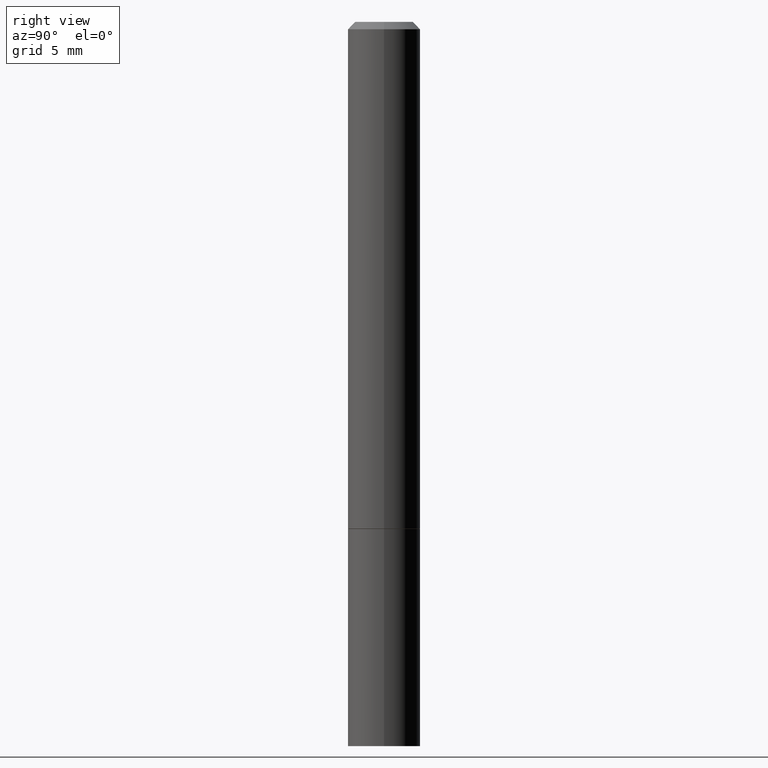
[diagram: clean part render]
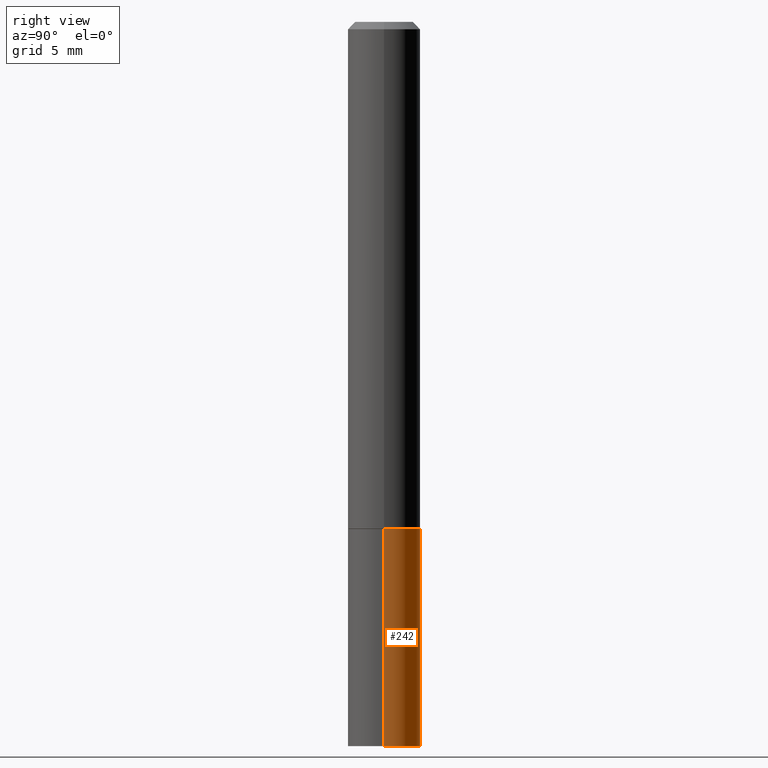
[diagram: same view with one face highlighted and labeled with its STEP entity id]
A machine part, right view. The second image highlights one B-rep face of the part: STEP entity #242.
In plain terms, the highlighted cylindrical surface (edge-blend (fillet) strip) has radius 2.5006 mm, axis along (-0, 0, 1).
Its self-contained STEP definition (entity closure, byte-faithful):
#3 = ORIENTED_EDGE ( 'NONE', *, *, #264, .F. ) ;
#10 = CARTESIAN_POINT ( 'NONE',  ( -0.09844999999999999585, -5.142417252796532568E-15, -1.968500000000000139 ) ) ;
#15 = DIRECTION ( 'NONE',  ( -2.445468806185136597E-29, 3.491481338843145583E-15, 1.000000000000000000 ) ) ;
#18 = EDGE_CURVE ( 'NONE', #353, #139, #183, .T. ) ;
#46 = DIRECTION ( 'NONE',  ( 1.000000000000000000, -6.982962677686265922E-15, 0.000000000000000000 ) ) ;
#65 = VECTOR ( 'NONE', #131, 39.37007874015748143 ) ;
#74 = EDGE_CURVE ( 'NONE', #160, #223, #116, .T. ) ;
#89 = AXIS2_PLACEMENT_3D ( 'NONE', #169, #142, #346 ) ;
#113 = DIRECTION ( 'NONE',  ( -2.445468806185136877E-29, 3.491481338843145188E-15, 1.000000000000000000 ) ) ;
#115 = CARTESIAN_POINT ( 'NONE',  ( 0.09844999999999999585, -7.560453691130944267E-15, -1.968500000000000139 ) ) ;
#116 = CIRCLE ( 'NONE', #89, 0.09844999999999999585 ) ;
#128 = CARTESIAN_POINT ( 'NONE',  ( 0.000000000000000000, 0.000000000000000000, 0.000000000000000000 ) ) ;
#131 = DIRECTION ( 'NONE',  ( -2.445468806185136877E-29, 3.491481338843145188E-15, 1.000000000000000000 ) ) ;
#137 = EDGE_LOOP ( 'NONE', ( #272, #239, #190, #3 ) ) ;
#139 = VERTEX_POINT ( 'NONE', #172 ) ;
#142 = DIRECTION ( 'NONE',  ( -2.445468806185136597E-29, 3.491481338843145583E-15, 1.000000000000000000 ) ) ;
#145 = LINE ( 'NONE', #288, #359 ) ;
#150 = EDGE_CURVE ( 'NONE', #223, #139, #145, .T. ) ;
#158 = CARTESIAN_POINT ( 'NONE',  ( 0.09844999999999999585, -6.874726756182129545E-16, 4.800596035771099214E-30 ) ) ;
#160 = VERTEX_POINT ( 'NONE', #115 ) ;
#169 = CARTESIAN_POINT ( 'NONE',  ( 4.813905344975441835E-29, -6.872981015512731707E-15, -1.968500000000000139 ) ) ;
#172 = CARTESIAN_POINT ( 'NONE',  ( -0.09844999999999999585, -5.142417252796532568E-15, -1.377900000000000125 ) ) ;
#183 = CIRCLE ( 'NONE', #274, 0.09844999999999999585 ) ;
#187 = FACE_OUTER_BOUND ( 'NONE', #137, .T. ) ;
#189 = CARTESIAN_POINT ( 'NONE',  ( 0.09844999999999999585, -5.498384812410182999E-15, -1.377900000000000125 ) ) ;
#190 = ORIENTED_EDGE ( 'NONE', *, *, #18, .F. ) ;
#219 = DIRECTION ( 'NONE',  ( 1.000000000000000000, -6.982962677686266711E-15, 4.876176775795936353E-29 ) ) ;
#223 = VERTEX_POINT ( 'NONE', #10 ) ;
#232 = AXIS2_PLACEMENT_3D ( 'NONE', #128, #15, #219 ) ;
#239 = ORIENTED_EDGE ( 'NONE', *, *, #150, .T. ) ;
#242 = ADVANCED_FACE ( 'NONE', ( #187 ), #269, .T. ) ;
#264 = EDGE_CURVE ( 'NONE', #160, #353, #357, .T. ) ;
#269 = CYLINDRICAL_SURFACE ( 'NONE', #232, 0.09844999999999999585 ) ;
#272 = ORIENTED_EDGE ( 'NONE', *, *, #74, .T. ) ;
#274 = AXIS2_PLACEMENT_3D ( 'NONE', #300, #366, #46 ) ;
#288 = CARTESIAN_POINT ( 'NONE',  ( -0.09844999999999999585, 6.995293233558186035E-16, -4.842691596355954042E-30 ) ) ;
#300 = CARTESIAN_POINT ( 'NONE',  ( 3.369611468042499724E-29, -4.810912136791970439E-15, -1.377900000000000125 ) ) ;
#346 = DIRECTION ( 'NONE',  ( 1.000000000000000000, -6.982962677686265922E-15, 0.000000000000000000 ) ) ;
#353 = VERTEX_POINT ( 'NONE', #189 ) ;
#357 = LINE ( 'NONE', #158, #65 ) ;
#359 = VECTOR ( 'NONE', #113, 39.37007874015748143 ) ;
#366 = DIRECTION ( 'NONE',  ( -2.445468806185136597E-29, 3.491481338843145583E-15, 1.000000000000000000 ) ) ;